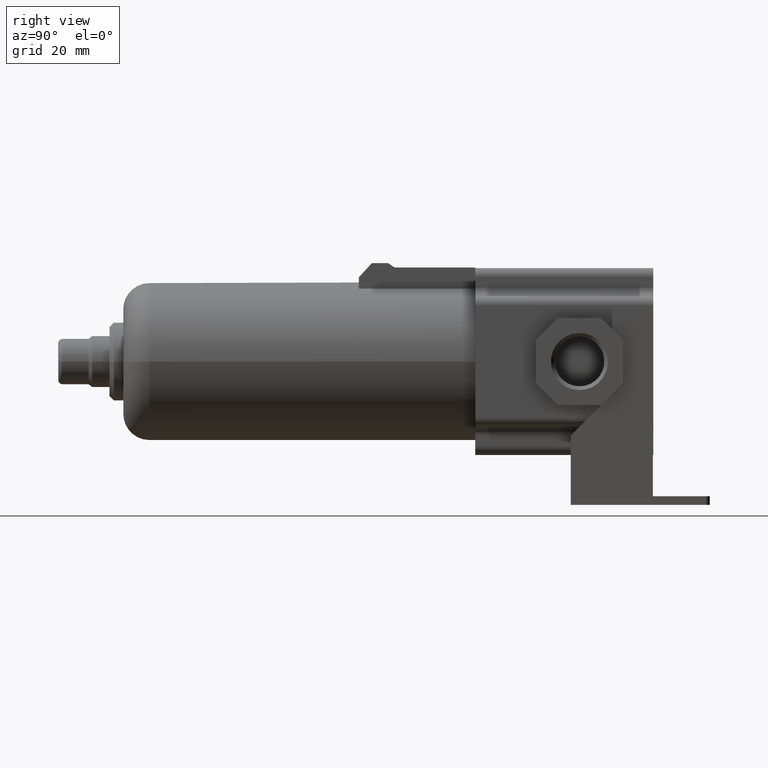
[diagram: clean part render]
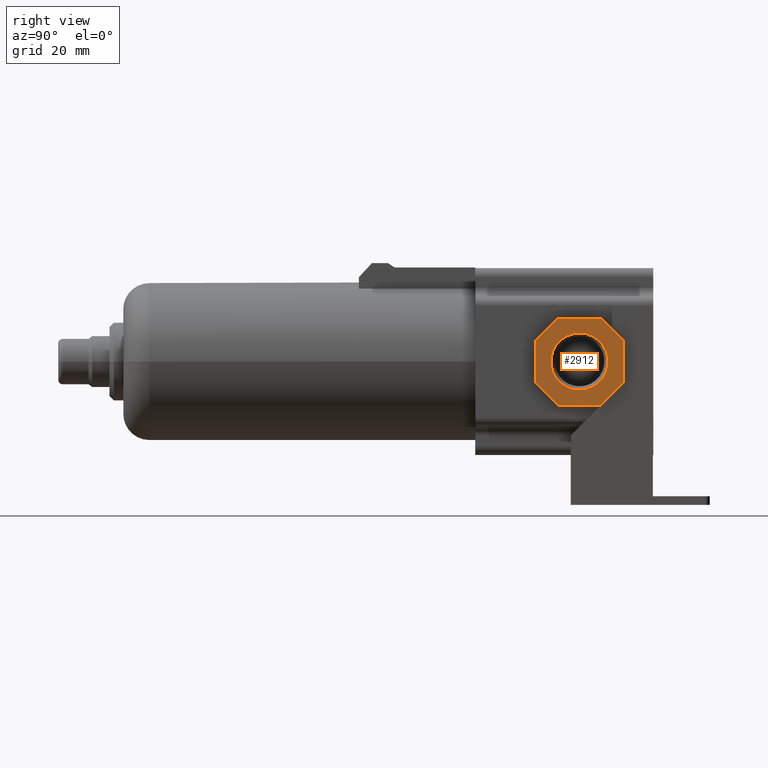
[diagram: same view with one face highlighted and labeled with its STEP entity id]
A machine part, right view. The second image highlights one B-rep face of the part: STEP entity #2912.
In plain terms, the highlighted planar face has unit normal (1, 0, 0).
Its self-contained STEP definition (entity closure, byte-faithful):
#6 = CARTESIAN_POINT ( 'NONE',  ( 26.25000000000000000, 0.0000000000000000000, 0.0000000000000000000 ) ) ;
#35 = DIRECTION ( 'NONE',  ( 1.000000000000000000, 0.0000000000000000000, -0.0000000000000000000 ) ) ;
#41 = VECTOR ( 'NONE', #1016, 1000.000000000000000 ) ;
#77 = CIRCLE ( 'NONE', #1610, 6.578500000000000014 ) ;
#167 = LINE ( 'NONE', #1551, #526 ) ;
#183 = CARTESIAN_POINT ( 'NONE',  ( 26.25000000000000000, 5.000000000000000000, -10.00000000000000000 ) ) ;
#244 = DIRECTION ( 'NONE',  ( 0.0000000000000000000, -0.7071067811865474617, -0.7071067811865474617 ) ) ;
#255 = EDGE_LOOP ( 'NONE', ( #3582, #4106, #1334, #1498, #3816, #648, #2769, #3112 ) ) ;
#322 = EDGE_LOOP ( 'NONE', ( #3123, #487 ) ) ;
#386 = VERTEX_POINT ( 'NONE', #1162 ) ;
#395 = EDGE_CURVE ( 'NONE', #3301, #1413, #4101, .T. ) ;
#401 = VERTEX_POINT ( 'NONE', #4060 ) ;
#410 = DIRECTION ( 'NONE',  ( 1.000000000000000000, 0.0000000000000000000, -0.0000000000000000000 ) ) ;
#480 = LINE ( 'NONE', #4084, #2028 ) ;
#487 = ORIENTED_EDGE ( 'NONE', *, *, #738, .F. ) ;
#497 = CARTESIAN_POINT ( 'NONE',  ( 26.25000000000000000, 10.00000000000000000, -5.000000000000000000 ) ) ;
#526 = VECTOR ( 'NONE', #1183, 1000.000000000000000 ) ;
#648 = ORIENTED_EDGE ( 'NONE', *, *, #3710, .T. ) ;
#686 = CARTESIAN_POINT ( 'NONE',  ( 26.25000000000000000, 0.0000000000000000000, 0.0000000000000000000 ) ) ;
#738 = EDGE_CURVE ( 'NONE', #878, #1990, #4298, .T. ) ;
#770 = VECTOR ( 'NONE', #2933, 1000.000000000000114 ) ;
#820 = AXIS2_PLACEMENT_3D ( 'NONE', #2416, #410, #1157 ) ;
#823 = VECTOR ( 'NONE', #2482, 1000.000000000000000 ) ;
#864 = CARTESIAN_POINT ( 'NONE',  ( 26.25000000000000000, -5.000000000000000000, -10.00000000000000000 ) ) ;
#869 = EDGE_CURVE ( 'NONE', #386, #1888, #167, .T. ) ;
#878 = VERTEX_POINT ( 'NONE', #2823 ) ;
#891 = LINE ( 'NONE', #1934, #770 ) ;
#1011 = EDGE_CURVE ( 'NONE', #1739, #1637, #4068, .T. ) ;
#1016 = DIRECTION ( 'NONE',  ( 0.0000000000000000000, 0.0000000000000000000, 1.000000000000000000 ) ) ;
#1035 = FACE_OUTER_BOUND ( 'NONE', #255, .T. ) ;
#1081 = DIRECTION ( 'NONE',  ( 0.0000000000000000000, 0.7071067811865474617, 0.7071067811865474617 ) ) ;
#1157 = DIRECTION ( 'NONE',  ( 0.0000000000000000000, 0.0000000000000000000, -1.000000000000000000 ) ) ;
#1162 = CARTESIAN_POINT ( 'NONE',  ( 26.25000000000000000, -10.00000000000000000, 5.000000000000000000 ) ) ;
#1183 = DIRECTION ( 'NONE',  ( 0.0000000000000000000, 0.0000000000000000000, -1.000000000000000000 ) ) ;
#1218 = CARTESIAN_POINT ( 'NONE',  ( 26.25000000000000000, -10.00000000000000000, -5.000000000000000000 ) ) ;
#1245 = EDGE_CURVE ( 'NONE', #1888, #401, #4196, .T. ) ;
#1334 = ORIENTED_EDGE ( 'NONE', *, *, #3820, .T. ) ;
#1372 = DIRECTION ( 'NONE',  ( 0.0000000000000000000, 0.0000000000000000000, -1.000000000000000000 ) ) ;
#1413 = VERTEX_POINT ( 'NONE', #2055 ) ;
#1498 = ORIENTED_EDGE ( 'NONE', *, *, #869, .T. ) ;
#1551 = CARTESIAN_POINT ( 'NONE',  ( 26.25000000000000000, -10.00000000000000000, 5.000000000000000000 ) ) ;
#1610 = AXIS2_PLACEMENT_3D ( 'NONE', #686, #35, #1372 ) ;
#1630 = CARTESIAN_POINT ( 'NONE',  ( 26.25000000000000000, 10.00000000000000000, 5.000000000000000000 ) ) ;
#1637 = VERTEX_POINT ( 'NONE', #1630 ) ;
#1669 = DIRECTION ( 'NONE',  ( 1.000000000000000000, 0.0000000000000000000, 0.0000000000000000000 ) ) ;
#1673 = CARTESIAN_POINT ( 'NONE',  ( 26.25000000000000000, 10.00000000000000000, -5.000000000000000000 ) ) ;
#1679 = CARTESIAN_POINT ( 'NONE',  ( 26.25000000000000000, 0.0000000000000000000, -6.578500000000000014 ) ) ;
#1739 = VERTEX_POINT ( 'NONE', #497 ) ;
#1888 = VERTEX_POINT ( 'NONE', #2256 ) ;
#1909 = LINE ( 'NONE', #3231, #3489 ) ;
#1934 = CARTESIAN_POINT ( 'NONE',  ( 26.25000000000000000, 10.00000000000000000, 5.000000000000000000 ) ) ;
#1990 = VERTEX_POINT ( 'NONE', #1679 ) ;
#2028 = VECTOR ( 'NONE', #1081, 1000.000000000000114 ) ;
#2055 = CARTESIAN_POINT ( 'NONE',  ( 26.25000000000000000, -5.000000000000000000, 10.00000000000000000 ) ) ;
#2256 = CARTESIAN_POINT ( 'NONE',  ( 26.25000000000000000, -10.00000000000000000, -5.000000000000000000 ) ) ;
#2298 = EDGE_CURVE ( 'NONE', #1637, #3301, #891, .T. ) ;
#2314 = FACE_BOUND ( 'NONE', #322, .T. ) ;
#2416 = CARTESIAN_POINT ( 'NONE',  ( 26.25000000000000000, 0.0000000000000000000, 0.0000000000000000000 ) ) ;
#2482 = DIRECTION ( 'NONE',  ( 0.0000000000000000000, -1.000000000000000000, 0.0000000000000000000 ) ) ;
#2487 = EDGE_CURVE ( 'NONE', #1990, #878, #77, .T. ) ;
#2596 = DIRECTION ( 'NONE',  ( 0.0000000000000000000, 0.7071067811865474617, -0.7071067811865474617 ) ) ;
#2662 = DIRECTION ( 'NONE',  ( 0.0000000000000000000, 0.0000000000000000000, -1.000000000000000000 ) ) ;
#2663 = VERTEX_POINT ( 'NONE', #183 ) ;
#2769 = ORIENTED_EDGE ( 'NONE', *, *, #3044, .T. ) ;
#2823 = CARTESIAN_POINT ( 'NONE',  ( 26.24999999999781508, 8.056338968193538763E-16, 6.578500000002184933 ) ) ;
#2912 = ADVANCED_FACE ( 'NONE', ( #2314, #1035 ), #3314, .T. ) ;
#2933 = DIRECTION ( 'NONE',  ( 0.0000000000000000000, -0.7071067811865474617, 0.7071067811865474617 ) ) ;
#3009 = CARTESIAN_POINT ( 'NONE',  ( 26.25000000000000000, 5.000000000000000000, 10.00000000000000000 ) ) ;
#3044 = EDGE_CURVE ( 'NONE', #2663, #1739, #480, .T. ) ;
#3112 = ORIENTED_EDGE ( 'NONE', *, *, #1011, .T. ) ;
#3123 = ORIENTED_EDGE ( 'NONE', *, *, #2487, .F. ) ;
#3231 = CARTESIAN_POINT ( 'NONE',  ( 26.25000000000000000, -5.000000000000000000, 10.00000000000000000 ) ) ;
#3301 = VERTEX_POINT ( 'NONE', #3009 ) ;
#3314 = PLANE ( 'NONE',  #4256 ) ;
#3489 = VECTOR ( 'NONE', #244, 1000.000000000000114 ) ;
#3491 = LINE ( 'NONE', #864, #3568 ) ;
#3568 = VECTOR ( 'NONE', #3868, 1000.000000000000000 ) ;
#3582 = ORIENTED_EDGE ( 'NONE', *, *, #2298, .T. ) ;
#3710 = EDGE_CURVE ( 'NONE', #401, #2663, #3491, .T. ) ;
#3772 = CARTESIAN_POINT ( 'NONE',  ( 26.25000000000000000, 5.000000000000000000, 10.00000000000000000 ) ) ;
#3816 = ORIENTED_EDGE ( 'NONE', *, *, #1245, .T. ) ;
#3820 = EDGE_CURVE ( 'NONE', #1413, #386, #1909, .T. ) ;
#3868 = DIRECTION ( 'NONE',  ( 0.0000000000000000000, 1.000000000000000000, 0.0000000000000000000 ) ) ;
#4060 = CARTESIAN_POINT ( 'NONE',  ( 26.25000000000000000, -5.000000000000000000, -10.00000000000000000 ) ) ;
#4068 = LINE ( 'NONE', #1673, #41 ) ;
#4084 = CARTESIAN_POINT ( 'NONE',  ( 26.25000000000000000, 5.000000000000000000, -10.00000000000000000 ) ) ;
#4101 = LINE ( 'NONE', #3772, #823 ) ;
#4106 = ORIENTED_EDGE ( 'NONE', *, *, #395, .T. ) ;
#4159 = VECTOR ( 'NONE', #2596, 1000.000000000000114 ) ;
#4196 = LINE ( 'NONE', #1218, #4159 ) ;
#4256 = AXIS2_PLACEMENT_3D ( 'NONE', #6, #1669, #2662 ) ;
#4298 = CIRCLE ( 'NONE', #820, 6.578500000000000014 ) ;